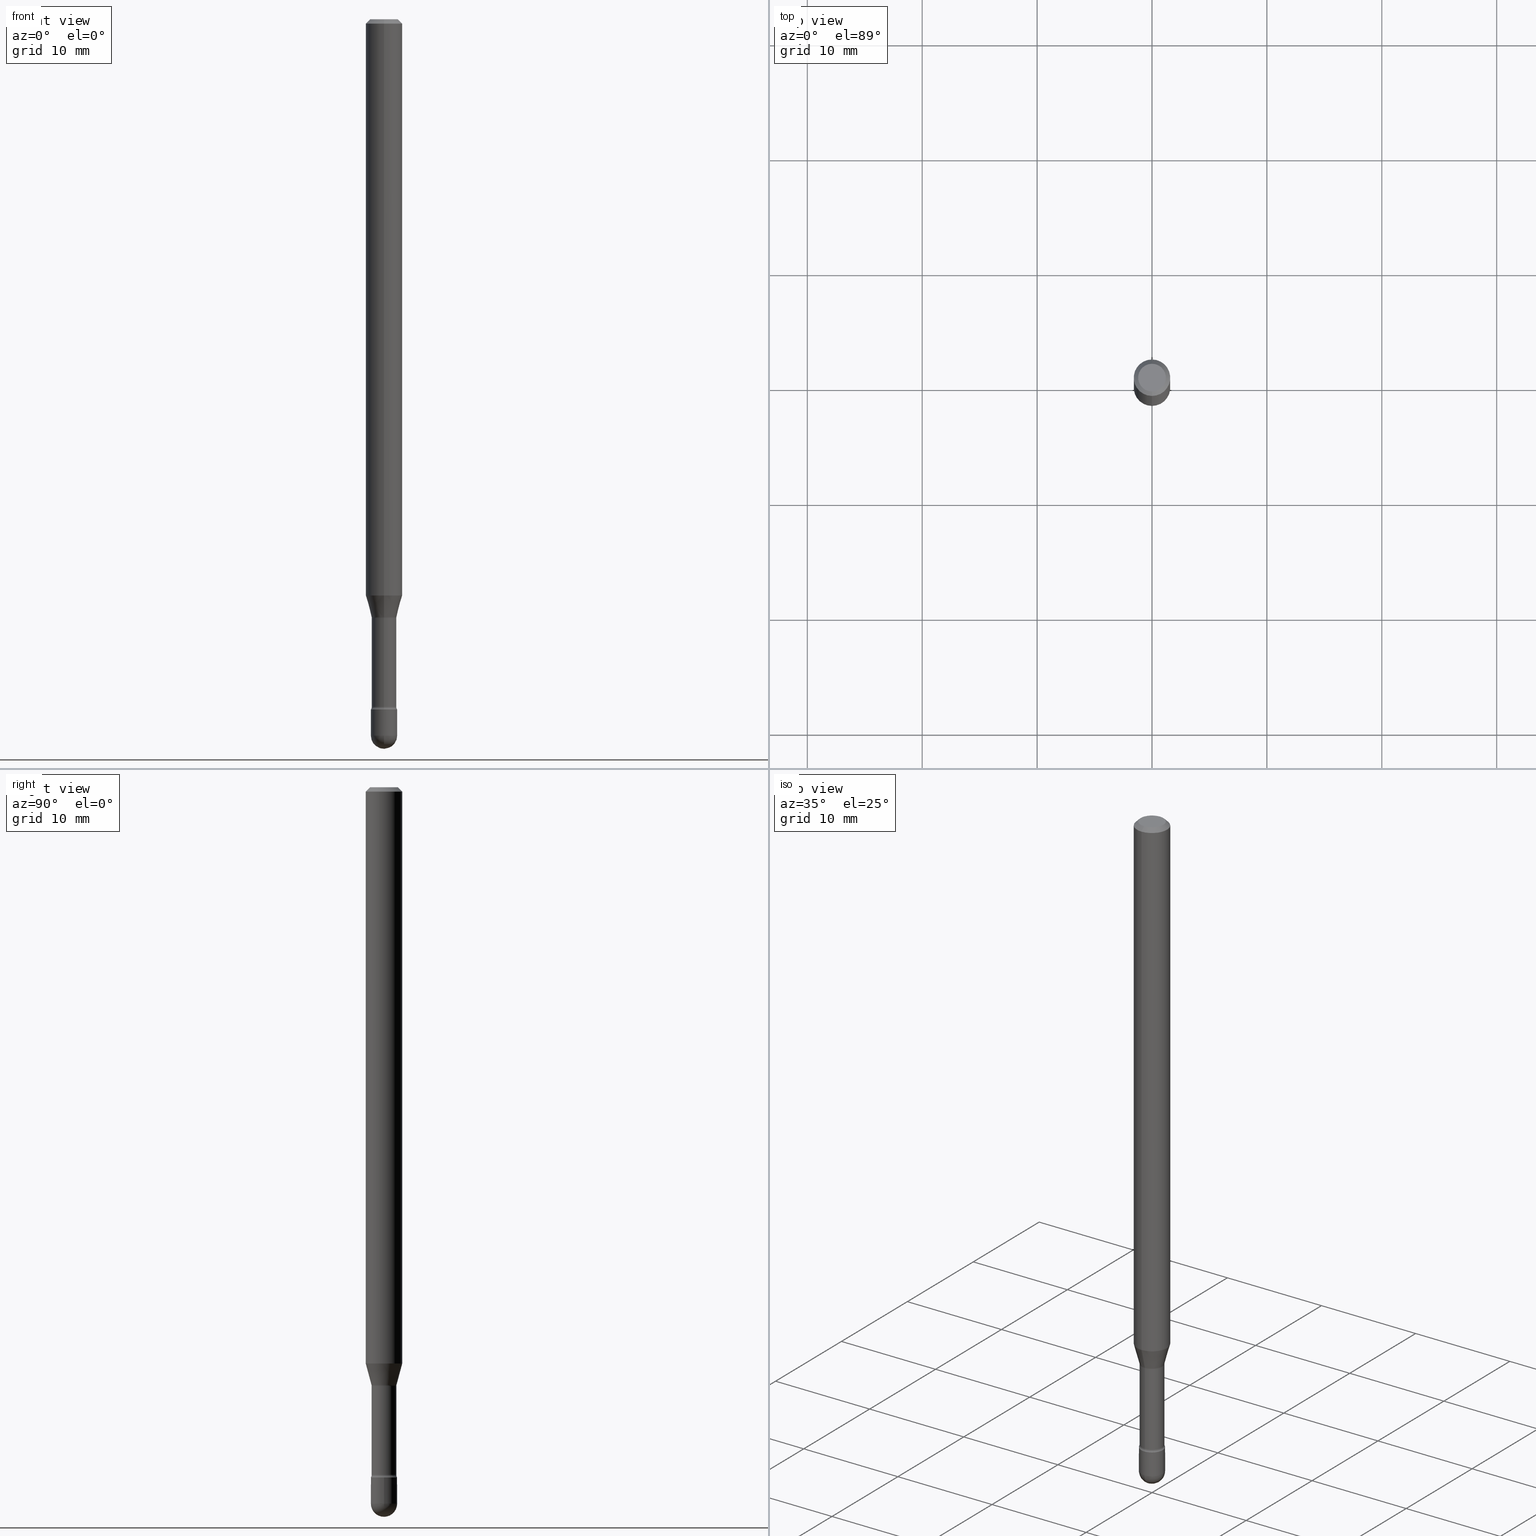
[diagram: canonical four-view strip — front | top / right | iso, engineering-drawing reading convention]
A machine part, canonical four-view strip (front | top / right | iso — engineering-drawing reading convention). The complete STEP part file that produces these views, byte-faithful:
ISO-10303-21;
HEADER;
FILE_DESCRIPTION (( 'STEP AP203' ),
    '1' );
FILE_NAME ('03852.STEP',
    '2024-04-09T20:45:49',
    ( '' ),
    ( '' ),
    'SwSTEP 2.0',
    'SolidWorks 2023',
    '' );
FILE_SCHEMA (( 'CONFIG_CONTROL_DESIGN' ));
ENDSEC;

DATA;
#1 = CARTESIAN_POINT ( 'NONE',  ( 5.017931694619254033E-29, -7.164587255726968093E-15, -2.051974787463811456 ) ) ;
#2 = ORIENTED_EDGE ( 'NONE', *, *, #186, .T. ) ;
#3 = FACE_OUTER_BOUND ( 'NONE', #286, .T. ) ;
#4 = DIRECTION ( 'NONE',  ( -2.445415862453792294E-29, 3.491557157279800917E-15, 1.000000000000000000 ) ) ;
#5 = ORIENTED_EDGE ( 'NONE', *, *, #337, .T. ) ;
#6 = SECURITY_CLASSIFICATION ( '', '', #252 ) ;
#7 = DIRECTION ( 'NONE',  ( -2.445468806185136597E-29, 3.491481338843145583E-15, 1.000000000000000000 ) ) ;
#8 = EDGE_CURVE ( 'NONE', #347, #391, #183, .T. ) ;
#9 = LINE ( 'NONE', #520, #163 ) ;
#10 = CARTESIAN_POINT ( 'NONE',  ( 3.668123793680708585E-31, -5.237335735919729601E-17, -0.01500000000000008271 ) ) ;
#11 = DIRECTION ( 'NONE',  ( 6.982962677686265133E-15, 1.000000000000000000, 0.000000000000000000 ) ) ;
#12 = ORIENTED_EDGE ( 'NONE', *, *, #425, .T. ) ;
#13 = DIRECTION ( 'NONE',  ( -2.445415862453792294E-29, 3.491557157279800917E-15, 1.000000000000000000 ) ) ;
#14 = DIRECTION ( 'NONE',  ( -6.982962677686267499E-15, -1.000000000000000000, 0.000000000000000000 ) ) ;
#15 = ORIENTED_EDGE ( 'NONE', *, *, #508, .F. ) ;
#16 = CARTESIAN_POINT ( 'NONE',  ( 3.316907271900976096E-16, 0.04749999999999999362, 3.181601912693037512E-17 ) ) ;
#17 = PLANE ( 'NONE',  #266 ) ;
#18 = ORIENTED_EDGE ( 'NONE', *, *, #439, .T. ) ;
#19 = CONICAL_SURFACE ( 'NONE', #481, 0.04281111260566397569, 0.2617993877991506846 ) ;
#20 = AXIS2_PLACEMENT_3D ( 'NONE', #329, #324, #11 ) ;
#21 = DIRECTION ( 'NONE',  ( -2.445415862453792294E-29, 3.491557157279800522E-15, 1.000000000000000000 ) ) ;
#22 = APPLICATION_PROTOCOL_DEFINITION ( 'international standard', 'config_control_design', 1994, #311 ) ;
#23 = DIRECTION ( 'NONE',  ( -2.445468806185136597E-29, 3.491481338843145583E-15, 1.000000000000000000 ) ) ;
#24 = SHAPE_DEFINITION_REPRESENTATION ( #130, #298 ) ;
#25 = CIRCLE ( 'NONE', #398, 0.04230000000000001120 ) ;
#26 = LOCAL_TIME ( 16, 45, 49.00000000000000000, #119 ) ;
#27 = DIRECTION ( 'NONE',  ( -1.000000000000000000, 6.982962677686265922E-15, -4.883557194083112340E-29 ) ) ;
#28 = CYLINDRICAL_SURFACE ( 'NONE', #501, 0.04230000000000001120 ) ;
#29 = ORIENTED_EDGE ( 'NONE', *, *, #406, .F. ) ;
#30 = EDGE_CURVE ( 'NONE', #243, #347, #314, .T. ) ;
#31 = EDGE_CURVE ( 'NONE', #387, #565, #121, .T. ) ;
#32 = DIRECTION ( 'NONE',  ( -6.982962677686267499E-15, -1.000000000000000000, 0.000000000000000000 ) ) ;
#33 = PERSON_AND_ORGANIZATION_ROLE ( 'classification_officer' ) ;
#34 = VECTOR ( 'NONE', #497, 39.37007874015748143 ) ;
#35 = APPLICATION_PROTOCOL_DEFINITION ( 'international standard', 'config_control_design', 1994, #250 ) ;
#36 = AXIS2_PLACEMENT_3D ( 'NONE', #182, #362, #449 ) ;
#37 = DIRECTION ( 'NONE',  ( -6.982962677686265133E-15, -1.000000000000000000, 6.070773319253918263E-15 ) ) ;
#38 = EDGE_LOOP ( 'NONE', ( #519, #223, #444, #91 ) ) ;
#39 = EDGE_CURVE ( 'NONE', #104, #101, #397, .T. ) ;
#40 = DIRECTION ( 'NONE',  ( -2.445415862453792294E-29, 3.491557157279800522E-15, 1.000000000000000000 ) ) ;
#41 = CARTESIAN_POINT ( 'NONE',  ( 4.440892098501112297E-16, 0.06249999999999995837, -0.01500000000000030129 ) ) ;
#42 = APPROVAL ( #196, 'UNSPECIFIED' ) ;
#43 = CONICAL_SURFACE ( 'NONE', #363, 0.06250000000000000000, 0.7853981633974483900 ) ;
#44 = CARTESIAN_POINT ( 'NONE',  ( 3.197442310921029545E-16, 0.04499999999999174799, -2.365000000000000213 ) ) ;
#45 = ORIENTED_EDGE ( 'NONE', *, *, #425, .F. ) ;
#46 = DIRECTION ( 'NONE',  ( -6.982962677686265922E-15, -1.000000000000000000, 3.483106191921935554E-15 ) ) ;
#47 = CARTESIAN_POINT ( 'NONE',  ( 5.783408514703218601E-29, -8.257532676966729049E-15, -2.365000000000000213 ) ) ;
#48 = ORIENTED_EDGE ( 'NONE', *, *, #351, .F. ) ;
#49 = DIRECTION ( 'NONE',  ( 1.000000000000000000, -6.982962677686266711E-15, 4.876176775795935793E-29 ) ) ;
#50 = CARTESIAN_POINT ( 'NONE',  ( 3.668123793680708585E-31, -5.237335735919729601E-17, -0.01500000000000008271 ) ) ;
#51 = CARTESIAN_POINT ( 'NONE',  ( 3.101519041593415244E-16, 0.04229999999999178167, -2.356414547187247965 ) ) ;
#52 = ORIENTED_EDGE ( 'NONE', *, *, #78, .T. ) ;
#53 = CARTESIAN_POINT ( 'NONE',  ( 6.003625919184510659E-29, -8.571586686859921733E-15, -2.455000000000000071 ) ) ;
#54 = ORIENTED_EDGE ( 'NONE', *, *, #135, .T. ) ;
#55 = CIRCLE ( 'NONE', #95, 0.01500000000000002720 ) ;
#56 = PRODUCT_DEFINITION_FORMATION_WITH_SPECIFIED_SOURCE ( 'ANY', '', #262, .NOT_KNOWN. ) ;
#57 = LENGTH_MEASURE_WITH_UNIT ( LENGTH_MEASURE( 0.02539999999999999897 ), #278 );
#58 = ORIENTED_EDGE ( 'NONE', *, *, #124, .F. ) ;
#59 = DIRECTION ( 'NONE',  ( -2.445468806185136597E-29, 3.491481338843145583E-15, 1.000000000000000000 ) ) ;
#60 = EDGE_LOOP ( 'NONE', ( #232, #403, #460, #165 ) ) ;
#61 = CARTESIAN_POINT ( 'NONE',  ( 3.840629472727447874E-16, 0.04749999999999999362, -2.485923956665947374E-16 ) ) ;
#62 = APPROVAL ( #206, 'UNSPECIFIED' ) ;
#63 = ORIENTED_EDGE ( 'NONE', *, *, #351, .T. ) ;
#64 = ADVANCED_FACE ( 'NONE', ( #123 ), #385, .T. ) ;
#65 = DIRECTION ( 'NONE',  ( -2.445468806185136597E-29, 3.491481338843145583E-15, 1.000000000000000000 ) ) ;
#66 = CIRCLE ( 'NONE', #302, 0.04749999999999999362 ) ;
#67 = EDGE_LOOP ( 'NONE', ( #83, #366, #115, #530, #189 ) ) ;
#68 = DIRECTION ( 'NONE',  ( -2.445415862453792294E-29, 3.491557157279800522E-15, 1.000000000000000000 ) ) ;
#69 = PERSON ( 'UNSPECIFIED', 'UNSPECIFIED', 'UNSPECIFIED', ('UNSPECIFIED'), ('UNSPECIFIED'), ('UNSPECIFIED') ) ;
#70 = DIRECTION ( 'NONE',  ( 1.839019923739603076E-15, 0.2588190451025253469, 0.9659258262890670910 ) ) ;
#71 = ADVANCED_FACE ( 'NONE', ( #198 ), #113, .F. ) ;
#72 = DATE_AND_TIME ( #474, #26 ) ;
#73 = SPHERICAL_SURFACE ( 'NONE', #74, 0.04499999999999996364 ) ;
#74 = AXIS2_PLACEMENT_3D ( 'NONE', #421, #27, #322 ) ;
#75 = DATE_AND_TIME ( #381, #552 ) ;
#76 = AXIS2_PLACEMENT_3D ( 'NONE', #544, #145, #141 ) ;
#77 = DIRECTION ( 'NONE',  ( -2.445415862453792294E-29, 3.491557157279800917E-15, 1.000000000000000000 ) ) ;
#78 = EDGE_CURVE ( 'NONE', #361, #306, #457, .T. ) ;
#79 = CARTESIAN_POINT ( 'NONE',  ( 4.071409875905875255E-16, 0.05729999999999284277, -2.051974787463811456 ) ) ;
#80 = DATE_TIME_ROLE ( 'creation_date' ) ;
#81 = FACE_OUTER_BOUND ( 'NONE', #270, .T. ) ;
#82 = FACE_OUTER_BOUND ( 'NONE', #395, .T. ) ;
#83 = ORIENTED_EDGE ( 'NONE', *, *, #345, .F. ) ;
#84 = VECTOR ( 'NONE', #566, 39.37007874015748143 ) ;
#85 = CARTESIAN_POINT ( 'NONE',  ( 4.440892098501110325E-16, 0.06249999999999313743, -1.974612573687109629 ) ) ;
#86 = VERTEX_POINT ( 'NONE', #553 ) ;
#87 = ADVANCED_FACE ( 'NONE', ( #158 ), #73, .T. ) ;
#88 = ORIENTED_EDGE ( 'NONE', *, *, #244, .F. ) ;
#89 = DESIGN_CONTEXT ( 'detailed design', #311, 'design' ) ;
#90 = CARTESIAN_POINT ( 'NONE',  ( 3.142333204959397663E-16, 0.04499999999999174105, -2.365000000000000213 ) ) ;
#91 = ORIENTED_EDGE ( 'NONE', *, *, #135, .F. ) ;
#92 = DIRECTION ( 'NONE',  ( -2.445468806185136597E-29, 3.491481338843145583E-15, 1.000000000000000000 ) ) ;
#93 = DIRECTION ( 'NONE',  ( 2.445415862453791734E-29, -3.491557157279800917E-15, -1.000000000000000000 ) ) ;
#94 = AXIS2_PLACEMENT_3D ( 'NONE', #16, #93, #267 ) ;
#95 = AXIS2_PLACEMENT_3D ( 'NONE', #446, #533, #318 ) ;
#96 = CARTESIAN_POINT ( 'NONE',  ( -2.953793212660715159E-16, -0.04230000000000824073, -2.356414547187247077 ) ) ;
#97 = UNCERTAINTY_MEASURE_WITH_UNIT (LENGTH_MEASURE( 1.000000000000000082E-05 ), #228, 'distance_accuracy_value', 'NONE');
#98 = CARTESIAN_POINT ( 'NONE',  ( 0.04499999999999999833, -3.142333204958819823E-16, 2.194279549108170967E-30 ) ) ;
#99 = EDGE_CURVE ( 'NONE', #417, #326, #288, .T. ) ;
#100 = LINE ( 'NONE', #222, #493 ) ;
#101 = VERTEX_POINT ( 'NONE', #272 ) ;
#102 = DIRECTION ( 'NONE',  ( -1.000000000000000000, 6.982962677686265922E-15, -4.883557194083112340E-29 ) ) ;
#103 = AXIS2_PLACEMENT_3D ( 'NONE', #407, #187, #242 ) ;
#104 = VERTEX_POINT ( 'NONE', #275 ) ;
#105 = AXIS2_PLACEMENT_3D ( 'NONE', #382, #485, #231 ) ;
#106 = EDGE_CURVE ( 'NONE', #118, #478, #431, .T. ) ;
#107 = FACE_OUTER_BOUND ( 'NONE', #404, .T. ) ;
#108 = ORIENTED_EDGE ( 'NONE', *, *, #354, .T. ) ;
#109 = CC_DESIGN_PERSON_AND_ORGANIZATION_ASSIGNMENT ( #203, #33, ( #6 ) ) ;
#110 = CARTESIAN_POINT ( 'NONE',  ( -4.364351673553431052E-16, -0.06250000000000686950, -1.974612573687108963 ) ) ;
#111 = DIRECTION ( 'NONE',  ( 1.000000000000000000, -6.982962677686265922E-15, 4.876176775795935793E-29 ) ) ;
#112 = CIRCLE ( 'NONE', #199, 0.06250000000000000000 ) ;
#113 = PLANE ( 'NONE',  #343 ) ;
#114 = CARTESIAN_POINT ( 'NONE',  ( 3.668123793680708585E-31, -5.237335735919729601E-17, -0.01500000000000008271 ) ) ;
#115 = ORIENTED_EDGE ( 'NONE', *, *, #508, .T. ) ;
#116 = PERSON_AND_ORGANIZATION_ROLE ( 'design_supplier' ) ;
#117 = CLOSED_SHELL ( 'NONE', ( #277, #500, #541, #301, #229, #194, #331, #64, #161, #238, #71, #423, #325, #254 ) ) ;
#118 = VERTEX_POINT ( 'NONE', #400 ) ;
#119 = COORDINATED_UNIVERSAL_TIME_OFFSET ( 5, 0, .BEHIND. ) ;
#120 = ORIENTED_EDGE ( 'NONE', *, *, #345, .T. ) ;
#121 = CIRCLE ( 'NONE', #419, 0.04749999999999999362 ) ;
#122 = CIRCLE ( 'NONE', #445, 0.04499999999999999833 ) ;
#123 = FACE_OUTER_BOUND ( 'NONE', #142, .T. ) ;
#124 = EDGE_CURVE ( 'NONE', #478, #487, #524, .T. ) ;
#125 = DIRECTION ( 'NONE',  ( -1.807323732225332900E-15, -0.2588190451025185745, 0.9659258262890689783 ) ) ;
#126 = ORIENTED_EDGE ( 'NONE', *, *, #506, .T. ) ;
#127 = ORIENTED_EDGE ( 'NONE', *, *, #489, .T. ) ;
#128 = EDGE_LOOP ( 'NONE', ( #531, #502, #498, #260 ) ) ;
#129 = DIRECTION ( 'NONE',  ( 1.000000000000000000, -6.982962677686269077E-15, 0.000000000000000000 ) ) ;
#130 = PRODUCT_DEFINITION_SHAPE ( 'NONE', 'NONE',  #148 ) ;
#131 = LINE ( 'NONE', #388, #34 ) ;
#132 = VERTEX_POINT ( 'NONE', #184 ) ;
#133 = CARTESIAN_POINT ( 'NONE',  ( 5.008437891643270411E-29, -7.151032033386447527E-15, -2.048092501787273534 ) ) ;
#134 = EDGE_CURVE ( 'NONE', #347, #86, #443, .T. ) ;
#135 = EDGE_CURVE ( 'NONE', #486, #417, #131, .T. ) ;
#136 = DIRECTION ( 'NONE',  ( 1.000000000000000000, -6.982962677686269077E-15, 0.000000000000000000 ) ) ;
#137 = DIRECTION ( 'NONE',  ( -6.982962677686265922E-15, -1.000000000000000000, 3.491557157279800522E-15 ) ) ;
#138 = CIRCLE ( 'NONE', #470, 0.06250000000000000000 ) ;
#139 =( NAMED_UNIT ( * ) SI_UNIT ( $, .STERADIAN. ) SOLID_ANGLE_UNIT ( ) );
#140 = DIRECTION ( 'NONE',  ( -6.982962677686265922E-15, -1.000000000000000000, 3.483106191921935554E-15 ) ) ;
#141 = DIRECTION ( 'NONE',  ( -6.982962677686265133E-15, -1.000000000000000000, 6.070773319253918263E-15 ) ) ;
#142 = EDGE_LOOP ( 'NONE', ( #88, #171, #54, #459 ) ) ;
#143 = MANIFOLD_SOLID_BREP ( 'Body-Move/Copy2[2]', #117 ) ;
#144 = LINE ( 'NONE', #529, #265 ) ;
#145 = DIRECTION ( 'NONE',  ( -2.445415862453792294E-29, 3.491557157279800522E-15, 1.000000000000000000 ) ) ;
#146 = DIRECTION ( 'NONE',  ( -6.982962677686265133E-15, -1.000000000000000000, 6.458269488567996591E-15 ) ) ;
#147 = CIRCLE ( 'NONE', #155, 0.04230000000000001120 ) ;
#148 = PRODUCT_DEFINITION ( 'UNKNOWN', '', #56, #89 ) ;
#149 = AXIS2_PLACEMENT_3D ( 'NONE', #79, #192, #549 ) ;
#150 = ORIENTED_EDGE ( 'NONE', *, *, #99, .T. ) ;
#151 = PERSON_AND_ORGANIZATION ( #69, #537 ) ;
#152 = EDGE_CURVE ( 'NONE', #132, #391, #147, .T. ) ;
#153 = DIRECTION ( 'NONE',  ( -6.982962677686265133E-15, -1.000000000000000000, 6.458269488567996591E-15 ) ) ;
#154 = CARTESIAN_POINT ( 'NONE',  ( 5.762538269587286723E-29, -8.227377418082795508E-15, -2.356414547187247521 ) ) ;
#155 = AXIS2_PLACEMENT_3D ( 'NONE', #1, #545, #146 ) ;
#156 = AXIS2_PLACEMENT_3D ( 'NONE', #47, #437, #37 ) ;
#157 = MANIFOLD_SOLID_BREP ( 'Body-Move/Copy2[1]', #432 ) ;
#158 = FACE_OUTER_BOUND ( 'NONE', #504, .T. ) ;
#159 = CC_DESIGN_DATE_AND_TIME_ASSIGNMENT ( #72, #255, ( #6 ) ) ;
#160 = EDGE_CURVE ( 'NONE', #565, #326, #225, .T. ) ;
#161 = ADVANCED_FACE ( 'NONE', ( #327 ), #43, .T. ) ;
#162 = APPROVAL_DATE_TIME ( #75, #310 ) ;
#163 = VECTOR ( 'NONE', #70, 39.37007874015748143 ) ;
#164 = CC_DESIGN_SECURITY_CLASSIFICATION ( #6, ( #56 ) ) ;
#165 = ORIENTED_EDGE ( 'NONE', *, *, #263, .T. ) ;
#166 = DIRECTION ( 'NONE',  ( -6.982962677686266711E-15, -1.000000000000000000, 6.381165607227959654E-15 ) ) ;
#167 = CIRCLE ( 'NONE', #317, 0.06250000000000000000 ) ;
#168 = CARTESIAN_POINT ( 'NONE',  ( 6.003625919184510659E-29, -8.571586686859923311E-15, -2.455000000000000071 ) ) ;
#169 =( NAMED_UNIT ( * ) PLANE_ANGLE_UNIT ( ) SI_UNIT ( $, .RADIAN. ) );
#170 = ORIENTED_EDGE ( 'NONE', *, *, #354, .F. ) ;
#171 = ORIENTED_EDGE ( 'NONE', *, *, #292, .T. ) ;
#172 = CARTESIAN_POINT ( 'NONE',  ( 5.783533726627847872E-29, -8.257353366364040046E-15, -2.365000000000000213 ) ) ;
#173 = FACE_OUTER_BOUND ( 'NONE', #67, .T. ) ;
#174 = CARTESIAN_POINT ( 'NONE',  ( 4.364351673553919652E-16, 0.06249999999999995143, -0.01500000000000030129 ) ) ;
#175 = EDGE_LOOP ( 'NONE', ( #516, #527, #402, #211 ) ) ;
#176 = CARTESIAN_POINT ( 'NONE',  ( 5.017931694619254033E-29, -7.164587255726968093E-15, -2.051974787463811456 ) ) ;
#177 = AXIS2_PLACEMENT_3D ( 'NONE', #393, #102, #14 ) ;
#178 = DIRECTION ( 'NONE',  ( -2.445415862453792294E-29, 3.491557157279800522E-15, 1.000000000000000000 ) ) ;
#179 = AXIS2_PLACEMENT_3D ( 'NONE', #114, #178, #46 ) ;
#180 = CIRCLE ( 'NONE', #36, 0.04281111260566397569 ) ;
#181 = CC_DESIGN_APPROVAL ( #42, ( #148 ) ) ;
#182 = CARTESIAN_POINT ( 'NONE',  ( 5.008437891643270411E-29, -7.151032033386447527E-15, -2.048092501787273534 ) ) ;
#183 = LINE ( 'NONE', #455, #368 ) ;
#184 = CARTESIAN_POINT ( 'NONE',  ( 3.005595772265799958E-16, 0.04229999999999284332, -2.051974787463811456 ) ) ;
#185 = ORIENTED_EDGE ( 'NONE', *, *, #160, .F. ) ;
#186 = EDGE_CURVE ( 'NONE', #387, #417, #144, .T. ) ;
#187 = DIRECTION ( 'NONE',  ( -2.445415862453792294E-29, 3.491557157279800522E-15, 1.000000000000000000 ) ) ;
#188 = CARTESIAN_POINT ( 'NONE',  ( 5.783533726627847872E-29, -8.257353366364040046E-15, -2.365000000000000213 ) ) ;
#189 = ORIENTED_EDGE ( 'NONE', *, *, #337, .F. ) ;
#190 = ORIENTED_EDGE ( 'NONE', *, *, #39, .T. ) ;
#191 = CARTESIAN_POINT ( 'NONE',  ( 2.023167869477720322E-45, -2.889396644415307199E-31, -8.274343069580424810E-17 ) ) ;
#192 = DIRECTION ( 'NONE',  ( 1.000000000000000000, -7.105427357601001070E-15, 4.926316437050140162E-29 ) ) ;
#193 = CC_DESIGN_PERSON_AND_ORGANIZATION_ASSIGNMENT ( #496, #554, ( #262 ) ) ;
#194 = ADVANCED_FACE ( 'NONE', ( #107 ), #19, .T. ) ;
#195 = DIRECTION ( 'NONE',  ( 2.445415862453792294E-29, -3.491557157279800522E-15, -1.000000000000000000 ) ) ;
#196 = APPROVAL_STATUS ( 'not_yet_approved' ) ;
#197 = AXIS2_PLACEMENT_3D ( 'NONE', #53, #65, #357 ) ;
#198 = FACE_OUTER_BOUND ( 'NONE', #454, .T. ) ;
#199 = AXIS2_PLACEMENT_3D ( 'NONE', #305, #453, #539 ) ;
#200 = FACE_OUTER_BOUND ( 'NONE', #60, .T. ) ;
#201 = CARTESIAN_POINT ( 'NONE',  ( -1.169113584055446105E-44, 1.669184350826100908E-30, 4.780733988912460139E-16 ) ) ;
#202 = CC_DESIGN_PERSON_AND_ORGANIZATION_ASSIGNMENT ( #422, #556, ( #56 ) ) ;
#203 = PERSON_AND_ORGANIZATION ( #69, #537 ) ;
#204 = CYLINDRICAL_SURFACE ( 'NONE', #525, 0.04499999999999999833 ) ;
#205 = AXIS2_PLACEMENT_3D ( 'NONE', #168, #257, #488 ) ;
#206 = APPROVAL_STATUS ( 'not_yet_approved' ) ;
#207 = VECTOR ( 'NONE', #538, 39.37007874015748143 ) ;
#208 = LOCAL_TIME ( 16, 45, 49.00000000000000000, #323 ) ;
#209 = EDGE_LOOP ( 'NONE', ( #523, #273, #332, #126 ) ) ;
#210 = CC_DESIGN_PERSON_AND_ORGANIZATION_ASSIGNMENT ( #348, #116, ( #56 ) ) ;
#211 = ORIENTED_EDGE ( 'NONE', *, *, #134, .F. ) ;
#212 = DIRECTION ( 'NONE',  ( -6.982962677686265922E-15, -1.000000000000000000, 4.370956789862821150E-15 ) ) ;
#213 = VECTOR ( 'NONE', #312, 39.37007874015748143 ) ;
#214 = AXIS2_PLACEMENT_3D ( 'NONE', #240, #68, #365 ) ;
#215 = VERTEX_POINT ( 'NONE', #234 ) ;
#216 = CARTESIAN_POINT ( 'NONE',  ( -0.04499999999999999833, 3.197442310920450718E-16, -2.213520790614707560E-30 ) ) ;
#217 = CYLINDRICAL_SURFACE ( 'NONE', #226, 0.04499999999999999833 ) ;
#218 = DIRECTION ( 'NONE',  ( -2.445415862453792294E-29, 3.491557157279800522E-15, 1.000000000000000000 ) ) ;
#219 = LINE ( 'NONE', #534, #546 ) ;
#220 = DIRECTION ( 'NONE',  ( -6.982962677686265133E-15, -1.000000000000000000, 3.491557157279800522E-15 ) ) ;
#221 = CARTESIAN_POINT ( 'NONE',  ( 6.003625919184510659E-29, -8.571586686859921733E-15, -2.455000000000000071 ) ) ;
#222 = CARTESIAN_POINT ( 'NONE',  ( 4.440892098500625669E-16, 0.06250000000000000000, 2.598510765612585059E-16 ) ) ;
#223 = ORIENTED_EDGE ( 'NONE', *, *, #244, .T. ) ;
#224 = DIRECTION ( 'NONE',  ( -2.445468806185136597E-29, 3.491481338843145583E-15, 1.000000000000000000 ) ) ;
#225 = LINE ( 'NONE', #174, #213 ) ;
#226 = AXIS2_PLACEMENT_3D ( 'NONE', #396, #7, #49 ) ;
#227 = ORIENTED_EDGE ( 'NONE', *, *, #292, .F. ) ;
#228 =( CONVERSION_BASED_UNIT ( 'INCH', #57 ) LENGTH_UNIT ( ) NAMED_UNIT ( #461 ) );
#229 = ADVANCED_FACE ( 'NONE', ( #542 ), #353, .T. ) ;
#230 = CARTESIAN_POINT ( 'NONE',  ( -1.169113584055446105E-44, 1.669184350826100908E-30, 4.780733988912460139E-16 ) ) ;
#231 = DIRECTION ( 'NONE',  ( -6.982962677686265922E-15, -1.000000000000000000, 3.491557157279800522E-15 ) ) ;
#232 = ORIENTED_EDGE ( 'NONE', *, *, #239, .F. ) ;
#233 = DIRECTION ( 'NONE',  ( -2.445415862453792294E-29, 3.491557157279800522E-15, 1.000000000000000000 ) ) ;
#234 = CARTESIAN_POINT ( 'NONE',  ( 3.741402302838914261E-16, 0.04281111260565682169, -2.048092501787273534 ) ) ;
#235 = CARTESIAN_POINT ( 'NONE',  ( -3.773273898774340269E-16, -0.04749999999999999362, 8.310553427498626585E-17 ) ) ;
#236 = ORIENTED_EDGE ( 'NONE', *, *, #124, .T. ) ;
#237 = ORIENTED_EDGE ( 'NONE', *, *, #8, .F. ) ;
#238 = ADVANCED_FACE ( 'NONE', ( #464 ), #409, .F. ) ;
#239 = EDGE_CURVE ( 'NONE', #243, #264, #55, .T. ) ;
#240 = CARTESIAN_POINT ( 'NONE',  ( 5.008437891643270411E-29, -7.151032033386447527E-15, -2.048092501787273534 ) ) ;
#241 = VECTOR ( 'NONE', #77, 39.37007874015748143 ) ;
#242 = DIRECTION ( 'NONE',  ( -6.982962677686265133E-15, -1.000000000000000000, 6.458269488567996591E-15 ) ) ;
#243 = VERTEX_POINT ( 'NONE', #51 ) ;
#244 = EDGE_CURVE ( 'NONE', #340, #326, #100, .T. ) ;
#245 = DIRECTION ( 'NONE',  ( -2.445415862453792294E-29, 3.491557157279800522E-15, 1.000000000000000000 ) ) ;
#246 = AXIS2_PLACEMENT_3D ( 'NONE', #418, #23, #371 ) ;
#247 = AXIS2_PLACEMENT_3D ( 'NONE', #221, #224, #136 ) ;
#248 = EDGE_CURVE ( 'NONE', #465, #486, #219, .T. ) ;
#249 = ADVANCED_FACE ( 'NONE', ( #81 ), #442, .T. ) ;
#250 = APPLICATION_CONTEXT ( 'configuration controlled 3d designs of mechanical parts and assemblies' ) ;
#251 = CARTESIAN_POINT ( 'NONE',  ( 0.000000000000000000, 0.000000000000000000, 0.000000000000000000 ) ) ;
#252 = SECURITY_CLASSIFICATION_LEVEL ( 'unclassified' ) ;
#253 = FACE_OUTER_BOUND ( 'NONE', #411, .T. ) ;
#254 = ADVANCED_FACE ( 'NONE', ( #253 ), #518, .F. ) ;
#255 = DATE_TIME_ROLE ( 'classification_date' ) ;
#256 = AXIS2_PLACEMENT_3D ( 'NONE', #484, #532, #220 ) ;
#257 = DIRECTION ( 'NONE',  ( -1.000000000000000000, 7.105427357601001070E-15, -4.926315508542082329E-29 ) ) ;
#258 = CARTESIAN_POINT ( 'NONE',  ( 4.828748909895165270E-29, -6.894472664511913322E-15, -1.974612573687109185 ) ) ;
#259 = ORIENTED_EDGE ( 'NONE', *, *, #8, .T. ) ;
#260 = ORIENTED_EDGE ( 'NONE', *, *, #320, .F. ) ;
#261 = ORIENTED_EDGE ( 'NONE', *, *, #106, .T. ) ;
#262 = PRODUCT ( '03852', '03852', '', ( #428 ) ) ;
#263 = EDGE_CURVE ( 'NONE', #86, #264, #296, .T. ) ;
#264 = VERTEX_POINT ( 'NONE', #44 ) ;
#265 = VECTOR ( 'NONE', #503, 39.37007874015748143 ) ;
#266 = AXIS2_PLACEMENT_3D ( 'NONE', #188, #558, #111 ) ;
#267 = DIRECTION ( 'NONE',  ( 6.982962677686265922E-15, 1.000000000000000000, -3.491557157279800917E-15 ) ) ;
#268 =( GEOMETRIC_REPRESENTATION_CONTEXT ( 3 ) GLOBAL_UNCERTAINTY_ASSIGNED_CONTEXT ( ( #97 ) ) GLOBAL_UNIT_ASSIGNED_CONTEXT ( ( #228, #169, #139 ) ) REPRESENTATION_CONTEXT ( 'NONE', 'WORKASPACE' ) );
#269 = DIRECTION ( 'NONE',  ( -1.000000000000000000, 6.982962677686265922E-15, -4.883557194083112340E-29 ) ) ;
#270 = EDGE_LOOP ( 'NONE', ( #170, #190, #284, #58 ) ) ;
#271 = DIRECTION ( 'NONE',  ( -2.445415862453792294E-29, 3.491557157279800522E-15, 1.000000000000000000 ) ) ;
#272 = CARTESIAN_POINT ( 'NONE',  ( -3.197442310919848226E-16, -0.04500000000000855399, -2.454999999999999627 ) ) ;
#273 = ORIENTED_EDGE ( 'NONE', *, *, #416, .F. ) ;
#274 = ORIENTED_EDGE ( 'NONE', *, *, #31, .T. ) ;
#275 = CARTESIAN_POINT ( 'NONE',  ( 6.115596139613495537E-29, -8.725947891809782708E-15, -2.500000000000000000 ) ) ;
#276 = PRODUCT_RELATED_PRODUCT_CATEGORY ( 'detail', '', ( #262 ) ) ;
#277 = ADVANCED_FACE ( 'NONE', ( #386 ), #289, .F. ) ;
#278 =( LENGTH_UNIT ( ) NAMED_UNIT ( * ) SI_UNIT ( $, .METRE. ) );
#279 = AXIS2_PLACEMENT_3D ( 'NONE', #334, #456, #32 ) ;
#280 = DIRECTION ( 'NONE',  ( 0.000000000000000000, 0.000000000000000000, 1.000000000000000000 ) ) ;
#281 = ORIENTED_EDGE ( 'NONE', *, *, #555, .F. ) ;
#282 = CARTESIAN_POINT ( 'NONE',  ( 5.008437891643270411E-29, -7.151032033386447527E-15, -2.048092501787273534 ) ) ;
#283 = CARTESIAN_POINT ( 'NONE',  ( 0.04499999999999999833, -8.571586686859921733E-15, -2.365000000000000213 ) ) ;
#284 = ORIENTED_EDGE ( 'NONE', *, *, #394, .F. ) ;
#285 = CARTESIAN_POINT ( 'NONE',  ( -4.364351673553912750E-16, -0.06250000000000005551, -0.01499999999999986587 ) ) ;
#286 = EDGE_LOOP ( 'NONE', ( #330, #2, #150, #185 ) ) ;
#287 = DIRECTION ( 'NONE',  ( -6.982962677686266711E-15, -1.000000000000000000, 3.491557157279800917E-15 ) ) ;
#288 = CIRCLE ( 'NONE', #179, 0.06250000000000000000 ) ;
#289 = TOROIDAL_SURFACE ( 'NONE', #105, 0.05730000000000000371, 0.01500000000000002720 ) ;
#290 = CARTESIAN_POINT ( 'NONE',  ( -2.953793212660789608E-16, -0.04230000000000717214, -2.051974787463811012 ) ) ;
#291 = DIRECTION ( 'NONE',  ( -2.445415862453791734E-29, 3.491557157279800917E-15, 1.000000000000000000 ) ) ;
#292 = EDGE_CURVE ( 'NONE', #340, #486, #112, .T. ) ;
#293 = APPROVAL_ROLE ( '' ) ;
#294 = ORIENTED_EDGE ( 'NONE', *, *, #463, .T. ) ;
#295 = DIRECTION ( 'NONE',  ( -2.445468806185136597E-29, 3.491481338843145583E-15, 1.000000000000000000 ) ) ;
#296 = CIRCLE ( 'NONE', #156, 0.04499999999999999833 ) ;
#297 = EDGE_CURVE ( 'NONE', #215, #465, #180, .T. ) ;
#298 = ADVANCED_BREP_SHAPE_REPRESENTATION ( '03852', ( #157, #143, #435 ), #268 ) ;
#299 = ADVANCED_FACE ( 'NONE', ( #173 ), #217, .T. ) ;
#300 = ORIENTED_EDGE ( 'NONE', *, *, #78, .F. ) ;
#301 = ADVANCED_FACE ( 'NONE', ( #3 ), #476, .T. ) ;
#302 = AXIS2_PLACEMENT_3D ( 'NONE', #191, #245, #287 ) ;
#303 = LOCAL_TIME ( 16, 45, 49.00000000000000000, #563 ) ;
#304 = DIRECTION ( 'NONE',  ( -6.982962677686265922E-15, -1.000000000000000000, 3.491557157279800522E-15 ) ) ;
#305 = CARTESIAN_POINT ( 'NONE',  ( 4.828748909895165270E-29, -6.894472664511913322E-15, -1.974612573687109185 ) ) ;
#306 = VERTEX_POINT ( 'NONE', #367 ) ;
#307 = CARTESIAN_POINT ( 'NONE',  ( 2.023167869477720322E-45, -2.889396644415307199E-31, -8.274343069580424810E-17 ) ) ;
#308 = CARTESIAN_POINT ( 'NONE',  ( 6.003625919184510659E-29, -8.571586686859923311E-15, -2.455000000000000071 ) ) ;
#309 = EDGE_LOOP ( 'NONE', ( #358, #274 ) ) ;
#310 = APPROVAL ( #430, 'UNSPECIFIED' ) ;
#311 = APPLICATION_CONTEXT ( 'configuration controlled 3d designs of mechanical parts and assemblies' ) ;
#312 = DIRECTION ( 'NONE',  ( 4.937700262164548042E-15, 0.7071067811865451302, -0.7071067811865499042 ) ) ;
#313 = ORIENTED_EDGE ( 'NONE', *, *, #336, .F. ) ;
#314 = CIRCLE ( 'NONE', #103, 0.04230000000000001120 ) ;
#315 = CYLINDRICAL_SURFACE ( 'NONE', #256, 0.04230000000000001120 ) ;
#316 = LINE ( 'NONE', #98, #207 ) ;
#317 = AXIS2_PLACEMENT_3D ( 'NONE', #50, #233, #140 ) ;
#318 = DIRECTION ( 'NONE',  ( 7.105427357601001859E-15, 1.000000000000000000, 0.000000000000000000 ) ) ;
#319 = FACE_OUTER_BOUND ( 'NONE', #175, .T. ) ;
#320 = EDGE_CURVE ( 'NONE', #465, #391, #434, .T. ) ;
#321 = ADVANCED_FACE ( 'NONE', ( #82 ), #204, .T. ) ;
#322 = DIRECTION ( 'NONE',  ( 6.982962677686265922E-15, 1.000000000000000000, -6.070773319253922996E-15 ) ) ;
#323 = COORDINATED_UNIVERSAL_TIME_OFFSET ( 5, 0, .BEHIND. ) ;
#324 = DIRECTION ( 'NONE',  ( 1.000000000000000000, -6.982962677686265922E-15, 4.883557194083112340E-29 ) ) ;
#325 = ADVANCED_FACE ( 'NONE', ( #490 ), #315, .T. ) ;
#326 = VERTEX_POINT ( 'NONE', #41 ) ;
#327 = FACE_OUTER_BOUND ( 'NONE', #209, .T. ) ;
#328 = CIRCLE ( 'NONE', #76, 0.04499999999999999833 ) ;
#329 = CARTESIAN_POINT ( 'NONE',  ( 6.003625919184510659E-29, -8.571586686859923311E-15, -2.455000000000000071 ) ) ;
#330 = ORIENTED_EDGE ( 'NONE', *, *, #31, .F. ) ;
#331 = ADVANCED_FACE ( 'NONE', ( #380 ), #482, .T. ) ;
#332 = ORIENTED_EDGE ( 'NONE', *, *, #160, .T. ) ;
#333 = CIRCLE ( 'NONE', #364, 0.04499999999999999833 ) ;
#334 = CARTESIAN_POINT ( 'NONE',  ( -4.001237614313728727E-16, -0.05730000000000716465, -2.051974787463811012 ) ) ;
#335 = CARTESIAN_POINT ( 'NONE',  ( -2.989484015155254514E-16, -0.04281111260567112969, -2.048092501787273090 ) ) ;
#336 = EDGE_CURVE ( 'NONE', #486, #340, #138, .T. ) ;
#337 = EDGE_CURVE ( 'NONE', #306, #361, #333, .T. ) ;
#338 = COORDINATED_UNIVERSAL_TIME_OFFSET ( 5, 0, .BEHIND. ) ;
#339 = APPROVAL_DATE_TIME ( #405, #42 ) ;
#340 = VERTEX_POINT ( 'NONE', #85 ) ;
#341 = CARTESIAN_POINT ( 'NONE',  ( 6.003625919184510659E-29, -8.571586686859921733E-15, -2.455000000000000071 ) ) ;
#342 = DIRECTION ( 'NONE',  ( 1.000000000000000000, -6.982962677686269077E-15, 0.000000000000000000 ) ) ;
#343 = AXIS2_PLACEMENT_3D ( 'NONE', #90, #291, #471 ) ;
#344 = TOROIDAL_SURFACE ( 'NONE', #384, 0.05730000000000003840, 0.01500000000000003067 ) ;
#345 = EDGE_CURVE ( 'NONE', #487, #306, #492, .T. ) ;
#346 = PERSON_AND_ORGANIZATION ( #69, #537 ) ;
#347 = VERTEX_POINT ( 'NONE', #96 ) ;
#348 = PERSON_AND_ORGANIZATION ( #69, #537 ) ;
#349 = DIRECTION ( 'NONE',  ( -6.982962677686266711E-15, -1.000000000000000000, 3.491557157279800917E-15 ) ) ;
#350 = CIRCLE ( 'NONE', #149, 0.01500000000000002720 ) ;
#351 = EDGE_CURVE ( 'NONE', #391, #132, #25, .T. ) ;
#352 = CARTESIAN_POINT ( 'NONE',  ( 6.003625919184510659E-29, -8.571586686859921733E-15, -2.455000000000000071 ) ) ;
#353 = CYLINDRICAL_SURFACE ( 'NONE', #412, 0.06250000000000000000 ) ;
#354 = EDGE_CURVE ( 'NONE', #104, #478, #551, .T. ) ;
#355 = AXIS2_PLACEMENT_3D ( 'NONE', #133, #564, #166 ) ;
#356 = ORIENTED_EDGE ( 'NONE', *, *, #320, .T. ) ;
#357 = DIRECTION ( 'NONE',  ( 1.000000000000000000, -6.982962677686269077E-15, 0.000000000000000000 ) ) ;
#358 = ORIENTED_EDGE ( 'NONE', *, *, #416, .T. ) ;
#359 = CARTESIAN_POINT ( 'NONE',  ( 3.668123793680708585E-31, -5.237335735919729601E-17, -0.01500000000000008271 ) ) ;
#360 = DIRECTION ( 'NONE',  ( 2.445415862453792294E-29, -3.491557157279800522E-15, -1.000000000000000000 ) ) ;
#361 = VERTEX_POINT ( 'NONE', #283 ) ;
#362 = DIRECTION ( 'NONE',  ( -2.445415862453792294E-29, 3.491557157279800522E-15, 1.000000000000000000 ) ) ;
#363 = AXIS2_PLACEMENT_3D ( 'NONE', #10, #360, #494 ) ;
#364 = AXIS2_PLACEMENT_3D ( 'NONE', #172, #92, #129 ) ;
#365 = DIRECTION ( 'NONE',  ( -6.982962677686266711E-15, -1.000000000000000000, 6.381165607227959654E-15 ) ) ;
#366 = ORIENTED_EDGE ( 'NONE', *, *, #394, .T. ) ;
#367 = CARTESIAN_POINT ( 'NONE',  ( -0.04499999999999999833, -8.094725795519935522E-15, -2.365000000000000213 ) ) ;
#368 = VECTOR ( 'NONE', #13, 39.37007874015748143 ) ;
#369 = AXIS2_PLACEMENT_3D ( 'NONE', #507, #21, #153 ) ;
#370 = APPROVAL_PERSON_ORGANIZATION ( #151, #42, #451 ) ;
#371 = DIRECTION ( 'NONE',  ( 1.000000000000000000, -6.982962677686269077E-15, 0.000000000000000000 ) ) ;
#372 = DIRECTION ( 'NONE',  ( -2.445415862453792294E-29, 3.491557157279800522E-15, 1.000000000000000000 ) ) ;
#373 = DIRECTION ( 'NONE',  ( -2.445415862453792294E-29, 3.491557157279800522E-15, 1.000000000000000000 ) ) ;
#374 = APPROVAL_ROLE ( '' ) ;
#375 = DIRECTION ( 'NONE',  ( -2.445415862453792294E-29, 3.491557157279800522E-15, 1.000000000000000000 ) ) ;
#376 = PERSON_AND_ORGANIZATION_ROLE ( 'creator' ) ;
#377 = CIRCLE ( 'NONE', #247, 0.04499999999999999833 ) ;
#378 = APPROVAL_PERSON_ORGANIZATION ( #514, #310, #374 ) ;
#379 = DATE_AND_TIME ( #436, #483 ) ;
#380 = FACE_OUTER_BOUND ( 'NONE', #429, .T. ) ;
#381 = CALENDAR_DATE ( 2024, 9, 4 ) ;
#382 = CARTESIAN_POINT ( 'NONE',  ( 5.018040333821126293E-29, -7.164431678206526346E-15, -2.051974787463811456 ) ) ;
#383 = ORIENTED_EDGE ( 'NONE', *, *, #30, .T. ) ;
#384 = AXIS2_PLACEMENT_3D ( 'NONE', #548, #372, #468 ) ;
#385 = CYLINDRICAL_SURFACE ( 'NONE', #469, 0.06250000000000000000 ) ;
#386 = FACE_OUTER_BOUND ( 'NONE', #128, .T. ) ;
#387 = VERTEX_POINT ( 'NONE', #235 ) ;
#388 = CARTESIAN_POINT ( 'NONE',  ( -4.364351673553916201E-16, -0.06250000000000000000, 6.962957212212335712E-16 ) ) ;
#389 = DIRECTION ( 'NONE',  ( -6.982962677686265133E-15, -1.000000000000000000, 6.458269488567996591E-15 ) ) ;
#390 = ADVANCED_FACE ( 'NONE', ( #410 ), #17, .T. ) ;
#391 = VERTEX_POINT ( 'NONE', #290 ) ;
#392 = DIRECTION ( 'NONE',  ( -2.445415862453792294E-29, 3.491557157279800522E-15, 1.000000000000000000 ) ) ;
#393 = CARTESIAN_POINT ( 'NONE',  ( -4.001237614313656250E-16, -0.05730000000000826793, -2.356414547187247077 ) ) ;
#394 = EDGE_CURVE ( 'NONE', #487, #101, #122, .T. ) ;
#395 = EDGE_LOOP ( 'NONE', ( #236, #120, #300, #440, #261 ) ) ;
#396 = CARTESIAN_POINT ( 'NONE',  ( 0.000000000000000000, 0.000000000000000000, 0.000000000000000000 ) ) ;
#397 = CIRCLE ( 'NONE', #205, 0.04499999999999996364 ) ;
#398 = AXIS2_PLACEMENT_3D ( 'NONE', #176, #392, #389 ) ;
#399 = CC_DESIGN_APPROVAL ( #310, ( #56 ) ) ;
#400 = CARTESIAN_POINT ( 'NONE',  ( 0.04499999999999999833, -8.728703347107863365E-15, -2.455000000000000071 ) ) ;
#401 = CARTESIAN_POINT ( 'NONE',  ( 0.000000000000000000, 0.000000000000000000, 0.000000000000000000 ) ) ;
#402 = ORIENTED_EDGE ( 'NONE', *, *, #555, .T. ) ;
#403 = ORIENTED_EDGE ( 'NONE', *, *, #439, .F. ) ;
#404 = EDGE_LOOP ( 'NONE', ( #12, #294, #313, #535 ) ) ;
#405 = DATE_AND_TIME ( #499, #208 ) ;
#406 = EDGE_CURVE ( 'NONE', #215, #132, #350, .T. ) ;
#407 = CARTESIAN_POINT ( 'NONE',  ( 5.762413512208565437E-29, -8.227556077749873507E-15, -2.356414547187247521 ) ) ;
#408 = CC_DESIGN_DATE_AND_TIME_ASSIGNMENT ( #560, #80, ( #148 ) ) ;
#409 = PLANE ( 'NONE',  #94 ) ;
#410 = FACE_OUTER_BOUND ( 'NONE', #521, .T. ) ;
#411 = EDGE_LOOP ( 'NONE', ( #29, #45, #356, #63 ) ) ;
#412 = AXIS2_PLACEMENT_3D ( 'NONE', #230, #218, #137 ) ;
#413 = CIRCLE ( 'NONE', #369, 0.04230000000000001120 ) ;
#414 = ORIENTED_EDGE ( 'NONE', *, *, #248, .T. ) ;
#415 = CALENDAR_DATE ( 2024, 9, 4 ) ;
#416 = EDGE_CURVE ( 'NONE', #565, #387, #66, .T. ) ;
#417 = VERTEX_POINT ( 'NONE', #285 ) ;
#418 = CARTESIAN_POINT ( 'NONE',  ( 5.783533726627847872E-29, -8.257353366364040046E-15, -2.365000000000000213 ) ) ;
#419 = AXIS2_PLACEMENT_3D ( 'NONE', #307, #373, #349 ) ;
#420 = AXIS2_PLACEMENT_3D ( 'NONE', #359, #195, #466 ) ;
#421 = CARTESIAN_POINT ( 'NONE',  ( 6.003625919184510659E-29, -8.571586686859923311E-15, -2.455000000000000071 ) ) ;
#422 = PERSON_AND_ORGANIZATION ( #69, #537 ) ;
#423 = ADVANCED_FACE ( 'NONE', ( #200 ), #344, .F. ) ;
#424 = FACE_OUTER_BOUND ( 'NONE', #540, .T. ) ;
#425 = EDGE_CURVE ( 'NONE', #465, #215, #458, .T. ) ;
#426 = DIRECTION ( 'NONE',  ( 1.000000000000000000, -6.982962677686266711E-15, 4.876176775795935793E-29 ) ) ;
#427 = COORDINATED_UNIVERSAL_TIME_OFFSET ( 5, 0, .BEHIND. ) ;
#428 = MECHANICAL_CONTEXT ( 'NONE', #250, 'mechanical' ) ;
#429 = EDGE_LOOP ( 'NONE', ( #543, #438, #414, #227 ) ) ;
#430 = APPROVAL_STATUS ( 'not_yet_approved' ) ;
#431 = CIRCLE ( 'NONE', #517, 0.04499999999999999833 ) ;
#432 = CLOSED_SHELL ( 'NONE', ( #321, #249, #390, #87, #299 ) ) ;
#433 = DIRECTION ( 'NONE',  ( 6.982962677686265922E-15, 1.000000000000000000, -6.070773319253922996E-15 ) ) ;
#434 = CIRCLE ( 'NONE', #279, 0.01500000000000002720 ) ;
#435 = AXIS2_PLACEMENT_3D ( 'NONE', #401, #280, #559 ) ;
#436 = CALENDAR_DATE ( 2024, 9, 4 ) ;
#437 = DIRECTION ( 'NONE',  ( -2.445415862453792294E-29, 3.491557157279800522E-15, 1.000000000000000000 ) ) ;
#438 = ORIENTED_EDGE ( 'NONE', *, *, #297, .T. ) ;
#439 = EDGE_CURVE ( 'NONE', #347, #243, #413, .T. ) ;
#440 = ORIENTED_EDGE ( 'NONE', *, *, #528, .F. ) ;
#441 = DIRECTION ( 'NONE',  ( -6.982962677686265133E-15, -1.000000000000000000, 3.491557157279800522E-15 ) ) ;
#442 = SPHERICAL_SURFACE ( 'NONE', #509, 0.04499999999999996364 ) ;
#443 = CIRCLE ( 'NONE', #177, 0.01500000000000002720 ) ;
#444 = ORIENTED_EDGE ( 'NONE', *, *, #99, .F. ) ;
#445 = AXIS2_PLACEMENT_3D ( 'NONE', #341, #295, #342 ) ;
#446 = CARTESIAN_POINT ( 'NONE',  ( 4.071409875905952169E-16, 0.05729999999999180887, -2.356414547187247965 ) ) ;
#447 = DIRECTION ( 'NONE',  ( -6.982962677686265922E-15, -1.000000000000000000, 3.491557157279800522E-15 ) ) ;
#448 = ORIENTED_EDGE ( 'NONE', *, *, #152, .F. ) ;
#449 = DIRECTION ( 'NONE',  ( -6.982962677686266711E-15, -1.000000000000000000, 6.381165607227959654E-15 ) ) ;
#450 = DIRECTION ( 'NONE',  ( -6.982962677686266711E-15, -1.000000000000000000, 6.381165607227959654E-15 ) ) ;
#451 = APPROVAL_ROLE ( '' ) ;
#452 = DIRECTION ( 'NONE',  ( 1.000000000000000000, -6.982962677686269077E-15, 0.000000000000000000 ) ) ;
#453 = DIRECTION ( 'NONE',  ( -2.445415862453792294E-29, 3.491557157279800522E-15, 1.000000000000000000 ) ) ;
#454 = EDGE_LOOP ( 'NONE', ( #550, #281 ) ) ;
#455 = CARTESIAN_POINT ( 'NONE',  ( -2.953793212661291028E-16, -0.04230000000000001120, 6.257662666441816574E-16 ) ) ;
#456 = DIRECTION ( 'NONE',  ( -1.000000000000000000, 6.982962677686265922E-15, -4.883557194083112340E-29 ) ) ;
#457 = CIRCLE ( 'NONE', #246, 0.04499999999999999833 ) ;
#458 = CIRCLE ( 'NONE', #214, 0.04281111260566397569 ) ;
#459 = ORIENTED_EDGE ( 'NONE', *, *, #506, .F. ) ;
#460 = ORIENTED_EDGE ( 'NONE', *, *, #134, .T. ) ;
#461 = DIMENSIONAL_EXPONENTS ( 1.000000000000000000, 0.000000000000000000, 0.000000000000000000, 0.000000000000000000, 0.000000000000000000, 0.000000000000000000, 0.000000000000000000 ) ;
#462 = DIRECTION ( 'NONE',  ( -6.982962677686265922E-15, -1.000000000000000000, 3.491557157279800522E-15 ) ) ;
#463 = EDGE_CURVE ( 'NONE', #215, #340, #9, .T. ) ;
#464 = FACE_OUTER_BOUND ( 'NONE', #309, .T. ) ;
#465 = VERTEX_POINT ( 'NONE', #335 ) ;
#466 = DIRECTION ( 'NONE',  ( 6.982962677686265922E-15, 1.000000000000000000, -3.483106191921935554E-15 ) ) ;
#467 = PERSON_AND_ORGANIZATION ( #69, #537 ) ;
#468 = DIRECTION ( 'NONE',  ( -6.982962677686265922E-15, -1.000000000000000000, 3.491557157279800522E-15 ) ) ;
#469 = AXIS2_PLACEMENT_3D ( 'NONE', #480, #511, #304 ) ;
#470 = AXIS2_PLACEMENT_3D ( 'NONE', #258, #271, #212 ) ;
#471 = DIRECTION ( 'NONE',  ( -6.982962677686265922E-15, -1.000000000000000000, 3.491557157279800917E-15 ) ) ;
#472 = APPROVAL_DATE_TIME ( #379, #62 ) ;
#473 = CARTESIAN_POINT ( 'NONE',  ( -0.04499999999999999833, -8.094725795519935522E-15, -2.455000000000000071 ) ) ;
#474 = CALENDAR_DATE ( 2024, 9, 4 ) ;
#475 = LINE ( 'NONE', #557, #241 ) ;
#476 = CONICAL_SURFACE ( 'NONE', #420, 0.06250000000000000000, 0.7853981633974483900 ) ;
#477 = APPROVAL_PERSON_ORGANIZATION ( #346, #62, #293 ) ;
#478 = VERTEX_POINT ( 'NONE', #512 ) ;
#479 = DIRECTION ( 'NONE',  ( -2.445415862453792294E-29, 3.491557157279800522E-15, 1.000000000000000000 ) ) ;
#480 = CARTESIAN_POINT ( 'NONE',  ( -1.169113584055446105E-44, 1.669184350826100908E-30, 4.780733988912460139E-16 ) ) ;
#481 = AXIS2_PLACEMENT_3D ( 'NONE', #282, #491, #450 ) ;
#482 = CONICAL_SURFACE ( 'NONE', #355, 0.04281111260566397569, 0.2617993877991506846 ) ;
#483 = LOCAL_TIME ( 16, 45, 49.00000000000000000, #427 ) ;
#484 = CARTESIAN_POINT ( 'NONE',  ( -1.169113584055446105E-44, 1.669184350826100908E-30, 4.780733988912460139E-16 ) ) ;
#485 = DIRECTION ( 'NONE',  ( -2.445415862453792294E-29, 3.491557157279800522E-15, 1.000000000000000000 ) ) ;
#486 = VERTEX_POINT ( 'NONE', #110 ) ;
#487 = VERTEX_POINT ( 'NONE', #473 ) ;
#488 = DIRECTION ( 'NONE',  ( -7.105427357601001070E-15, -1.000000000000000000, 0.000000000000000000 ) ) ;
#489 = EDGE_CURVE ( 'NONE', #243, #132, #475, .T. ) ;
#490 = FACE_OUTER_BOUND ( 'NONE', #513, .T. ) ;
#491 = DIRECTION ( 'NONE',  ( -2.445415862453792294E-29, 3.491557157279800522E-15, 1.000000000000000000 ) ) ;
#492 = LINE ( 'NONE', #216, #84 ) ;
#493 = VECTOR ( 'NONE', #4, 39.37007874015748143 ) ;
#494 = DIRECTION ( 'NONE',  ( 6.982962677686265922E-15, 1.000000000000000000, -3.483106191921935554E-15 ) ) ;
#495 = ORIENTED_EDGE ( 'NONE', *, *, #39, .F. ) ;
#496 = PERSON_AND_ORGANIZATION ( #69, #537 ) ;
#497 = DIRECTION ( 'NONE',  ( -2.445415862453792294E-29, 3.491557157279800917E-15, 1.000000000000000000 ) ) ;
#498 = ORIENTED_EDGE ( 'NONE', *, *, #152, .T. ) ;
#499 = CALENDAR_DATE ( 2024, 9, 4 ) ;
#500 = ADVANCED_FACE ( 'NONE', ( #424 ), #28, .T. ) ;
#501 = AXIS2_PLACEMENT_3D ( 'NONE', #201, #375, #441 ) ;
#502 = ORIENTED_EDGE ( 'NONE', *, *, #406, .T. ) ;
#503 = DIRECTION ( 'NONE',  ( -4.851104656540964275E-15, -0.7071067811865500152, -0.7071067811865450192 ) ) ;
#504 = EDGE_LOOP ( 'NONE', ( #495, #108, #561, #15 ) ) ;
#505 = ORIENTED_EDGE ( 'NONE', *, *, #489, .F. ) ;
#506 = EDGE_CURVE ( 'NONE', #326, #417, #167, .T. ) ;
#507 = CARTESIAN_POINT ( 'NONE',  ( 5.762413512208565437E-29, -8.227556077749873507E-15, -2.356414547187247521 ) ) ;
#508 = EDGE_CURVE ( 'NONE', #101, #118, #377, .T. ) ;
#509 = AXIS2_PLACEMENT_3D ( 'NONE', #308, #269, #433 ) ;
#510 = AXIS2_PLACEMENT_3D ( 'NONE', #526, #40, #447 ) ;
#511 = DIRECTION ( 'NONE',  ( -2.445415862453792294E-29, 3.491557157279800522E-15, 1.000000000000000000 ) ) ;
#512 = CARTESIAN_POINT ( 'NONE',  ( 3.142333204959418864E-16, 0.04499999999999140798, -2.455000000000000071 ) ) ;
#513 = EDGE_LOOP ( 'NONE', ( #505, #383, #259, #448 ) ) ;
#514 = PERSON_AND_ORGANIZATION ( #69, #537 ) ;
#515 = CC_DESIGN_PERSON_AND_ORGANIZATION_ASSIGNMENT ( #467, #376, ( #148 ) ) ;
#516 = ORIENTED_EDGE ( 'NONE', *, *, #30, .F. ) ;
#517 = AXIS2_PLACEMENT_3D ( 'NONE', #352, #59, #452 ) ;
#518 = TOROIDAL_SURFACE ( 'NONE', #510, 0.05730000000000000371, 0.01500000000000002720 ) ;
#519 = ORIENTED_EDGE ( 'NONE', *, *, #336, .T. ) ;
#520 = CARTESIAN_POINT ( 'NONE',  ( 3.041912507176719677E-16, 0.04281111260565682169, -2.048092501787273534 ) ) ;
#521 = EDGE_LOOP ( 'NONE', ( #52, #5 ) ) ;
#522 = DIRECTION ( 'NONE',  ( -2.445468806185136597E-29, 3.491481338843145583E-15, 1.000000000000000000 ) ) ;
#523 = ORIENTED_EDGE ( 'NONE', *, *, #186, .F. ) ;
#524 = CIRCLE ( 'NONE', #197, 0.04499999999999999833 ) ;
#525 = AXIS2_PLACEMENT_3D ( 'NONE', #251, #522, #426 ) ;
#526 = CARTESIAN_POINT ( 'NONE',  ( 5.018040333821126293E-29, -7.164431678206526346E-15, -2.051974787463811456 ) ) ;
#527 = ORIENTED_EDGE ( 'NONE', *, *, #239, .T. ) ;
#528 = EDGE_CURVE ( 'NONE', #118, #361, #316, .T. ) ;
#529 = CARTESIAN_POINT ( 'NONE',  ( -4.287811248607203282E-16, -0.06250000000000005551, -0.01499999999999986587 ) ) ;
#530 = ORIENTED_EDGE ( 'NONE', *, *, #528, .T. ) ;
#531 = ORIENTED_EDGE ( 'NONE', *, *, #297, .F. ) ;
#532 = DIRECTION ( 'NONE',  ( -2.445415862453792294E-29, 3.491557157279800522E-15, 1.000000000000000000 ) ) ;
#533 = DIRECTION ( 'NONE',  ( 1.000000000000000000, -7.105427357601001070E-15, 4.926316437050140162E-29 ) ) ;
#534 = CARTESIAN_POINT ( 'NONE',  ( -2.989484015155254514E-16, -0.04281111260567112969, -2.048092501787273090 ) ) ;
#535 = ORIENTED_EDGE ( 'NONE', *, *, #248, .F. ) ;
#536 = TOROIDAL_SURFACE ( 'NONE', #562, 0.05730000000000003840, 0.01500000000000003067 ) ;
#537 = ORGANIZATION ( 'UNSPECIFIED', 'UNSPECIFIED', '' ) ;
#538 = DIRECTION ( 'NONE',  ( -2.445468806185136877E-29, 3.491481338843145188E-15, 1.000000000000000000 ) ) ;
#539 = DIRECTION ( 'NONE',  ( -6.982962677686265922E-15, -1.000000000000000000, 4.370956789862821150E-15 ) ) ;
#540 = EDGE_LOOP ( 'NONE', ( #18, #127, #48, #237 ) ) ;
#541 = ADVANCED_FACE ( 'NONE', ( #319 ), #536, .F. ) ;
#542 = FACE_OUTER_BOUND ( 'NONE', #38, .T. ) ;
#543 = ORIENTED_EDGE ( 'NONE', *, *, #463, .F. ) ;
#544 = CARTESIAN_POINT ( 'NONE',  ( 5.783408514703218601E-29, -8.257532676966729049E-15, -2.365000000000000213 ) ) ;
#545 = DIRECTION ( 'NONE',  ( -2.445415862453792294E-29, 3.491557157279800522E-15, 1.000000000000000000 ) ) ;
#546 = VECTOR ( 'NONE', #125, 39.37007874015748143 ) ;
#547 = CC_DESIGN_APPROVAL ( #62, ( #6 ) ) ;
#548 = CARTESIAN_POINT ( 'NONE',  ( 5.762538269587286723E-29, -8.227377418082795508E-15, -2.356414547187247521 ) ) ;
#549 = DIRECTION ( 'NONE',  ( 7.105427357601001859E-15, 1.000000000000000000, 0.000000000000000000 ) ) ;
#550 = ORIENTED_EDGE ( 'NONE', *, *, #263, .F. ) ;
#551 = CIRCLE ( 'NONE', #20, 0.04499999999999996364 ) ;
#552 = LOCAL_TIME ( 16, 45, 49.00000000000000000, #338 ) ;
#553 = CARTESIAN_POINT ( 'NONE',  ( -3.142333204958241982E-16, -0.04500000000000827644, -2.364999999999999769 ) ) ;
#554 = PERSON_AND_ORGANIZATION_ROLE ( 'design_owner' ) ;
#555 = EDGE_CURVE ( 'NONE', #264, #86, #328, .T. ) ;
#556 = PERSON_AND_ORGANIZATION_ROLE ( 'creator' ) ;
#557 = CARTESIAN_POINT ( 'NONE',  ( 3.005595772265223596E-16, 0.04230000000000001120, 3.303805311383104691E-16 ) ) ;
#558 = DIRECTION ( 'NONE',  ( -2.438088387897960049E-29, 3.491481338843145188E-15, 1.000000000000000000 ) ) ;
#559 = DIRECTION ( 'NONE',  ( 1.000000000000000000, 0.000000000000000000, 0.000000000000000000 ) ) ;
#560 = DATE_AND_TIME ( #415, #303 ) ;
#561 = ORIENTED_EDGE ( 'NONE', *, *, #106, .F. ) ;
#562 = AXIS2_PLACEMENT_3D ( 'NONE', #154, #479, #462 ) ;
#563 = COORDINATED_UNIVERSAL_TIME_OFFSET ( 5, 0, .BEHIND. ) ;
#564 = DIRECTION ( 'NONE',  ( -2.445415862453792294E-29, 3.491557157279800522E-15, 1.000000000000000000 ) ) ;
#565 = VERTEX_POINT ( 'NONE', #61 ) ;
#566 = DIRECTION ( 'NONE',  ( -2.445468806185136877E-29, 3.491481338843145188E-15, 1.000000000000000000 ) ) ;
ENDSEC;
END-ISO-10303-21;
